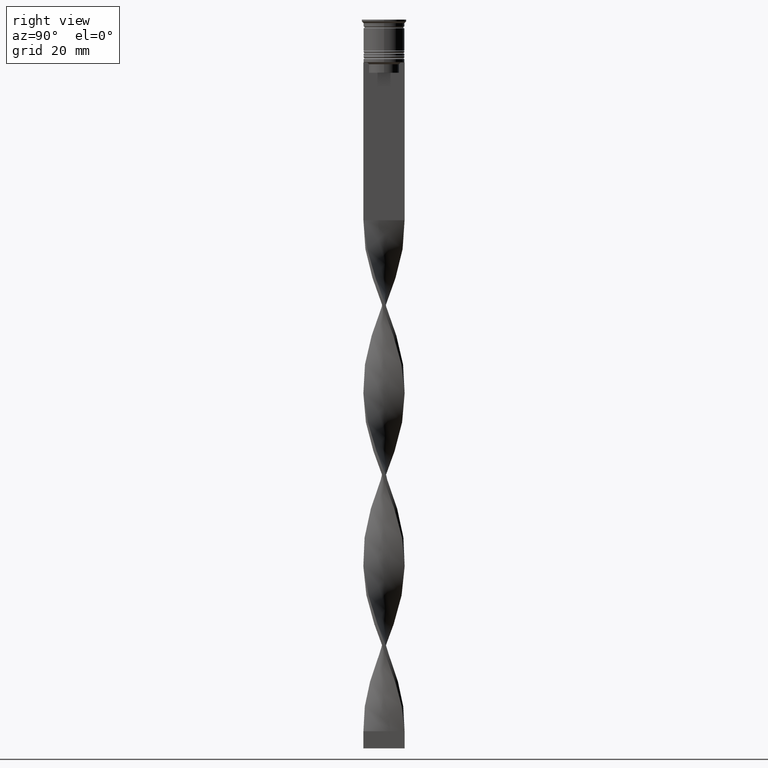
[diagram: clean part render]
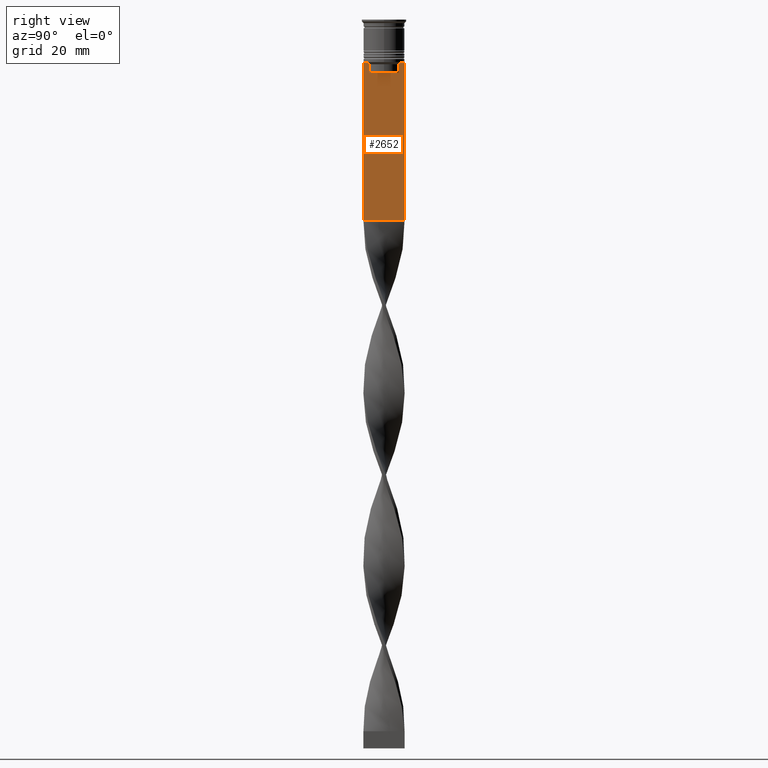
[diagram: same view with one face highlighted and labeled with its STEP entity id]
A machine part, right view. The second image highlights one B-rep face of the part: STEP entity #2652.
In plain terms, the highlighted planar face has unit normal (-1, 0, 0).
Its self-contained STEP definition (entity closure, byte-faithful):
#3 = LINE ( 'NONE', #2383, #3336 ) ;
#8 = B_SPLINE_CURVE_WITH_KNOTS ( 'NONE', 3,
 ( #1728, #3817, #2663, #242 ),
 .UNSPECIFIED., .F., .F.,
 ( 4, 4 ),
 ( 0.02089901220910808308, 0.02161421017310286019 ),
 .UNSPECIFIED. ) ;
#91 = VERTEX_POINT ( 'NONE', #867 ) ;
#148 = VERTEX_POINT ( 'NONE', #3849 ) ;
#173 = CARTESIAN_POINT ( 'NONE',  ( 0.5000000000000002220, 4.399999999999999467, -15.50000000000000000 ) ) ;
#206 = LINE ( 'NONE', #2154, #257 ) ;
#242 = CARTESIAN_POINT ( 'NONE',  ( 0.5000000000000002220, -4.874423042781576676, -12.50000000000000000 ) ) ;
#257 = VECTOR ( 'NONE', #2352, 1000.000000000000000 ) ;
#293 = DIRECTION ( 'NONE',  ( 0.000000000000000000, -1.000000000000000000, 0.000000000000000000 ) ) ;
#348 = VERTEX_POINT ( 'NONE', #1314 ) ;
#350 = EDGE_CURVE ( 'NONE', #348, #2137, #512, .T. ) ;
#366 = CARTESIAN_POINT ( 'NONE',  ( 0.5000000000000002220, -6.000000000000000000, -12.50000000000000000 ) ) ;
#396 = ORIENTED_EDGE ( 'NONE', *, *, #1695, .T. ) ;
#401 = CARTESIAN_POINT ( 'NONE',  ( 0.5000000000000002220, 4.371498598878878816, 0.000000000000000000 ) ) ;
#485 = DIRECTION ( 'NONE',  ( 0.000000000000000000, 0.000000000000000000, 1.000000000000000000 ) ) ;
#512 = LINE ( 'NONE', #173, #3157 ) ;
#598 = VERTEX_POINT ( 'NONE', #3150 ) ;
#647 = CARTESIAN_POINT ( 'NONE',  ( 0.5000000000000002220, -4.371498598878878816, -13.00000000000000178 ) ) ;
#667 = LINE ( 'NONE', #975, #881 ) ;
#673 = CARTESIAN_POINT ( 'NONE',  ( 0.5000000000000002220, -4.371498598878878816, -15.50000000000000000 ) ) ;
#744 = DIRECTION ( 'NONE',  ( -0.000000000000000000, -0.000000000000000000, 1.000000000000000000 ) ) ;
#801 = VECTOR ( 'NONE', #744, 1000.000000000000000 ) ;
#822 = FACE_OUTER_BOUND ( 'NONE', #962, .T. ) ;
#835 = VERTEX_POINT ( 'NONE', #1734 ) ;
#857 = B_SPLINE_CURVE_WITH_KNOTS ( 'NONE', 3,
 ( #1885, #3685, #1928, #2486 ),
 .UNSPECIFIED., .F., .F.,
 ( 4, 4 ),
 ( 0.008336552452178421987, 0.009045730124312839626 ),
 .UNSPECIFIED. ) ;
#867 = CARTESIAN_POINT ( 'NONE',  ( 0.5000000000000002220, -6.000000000000000000, -12.50000000000000000 ) ) ;
#881 = VECTOR ( 'NONE', #3380, 1000.000000000000000 ) ;
#921 = ORIENTED_EDGE ( 'NONE', *, *, #3396, .T. ) ;
#962 = EDGE_LOOP ( 'NONE', ( #2723, #1039, #2107, #2933, #3318, #3732, #1153, #921, #2643, #1700, #3351, #396 ) ) ;
#975 = CARTESIAN_POINT ( 'NONE',  ( 0.5000000000000002220, -6.000000000000000000, -58.50000000000000000 ) ) ;
#1039 = ORIENTED_EDGE ( 'NONE', *, *, #2207, .T. ) ;
#1147 = CARTESIAN_POINT ( 'NONE',  ( 0.5000000000000002220, -5.999999999999999112, -58.50000000000000000 ) ) ;
#1153 = ORIENTED_EDGE ( 'NONE', *, *, #2337, .T. ) ;
#1246 = EDGE_CURVE ( 'NONE', #3640, #348, #2839, .T. ) ;
#1256 = VERTEX_POINT ( 'NONE', #647 ) ;
#1259 = AXIS2_PLACEMENT_3D ( 'NONE', #3183, #1361, #485 ) ;
#1314 = CARTESIAN_POINT ( 'NONE',  ( 0.5000000000000002220, 4.371498598878878816, -15.50000000000000000 ) ) ;
#1346 = CARTESIAN_POINT ( 'NONE',  ( 0.5000000000000002220, -4.371498598878878816, 0.000000000000000000 ) ) ;
#1361 = DIRECTION ( 'NONE',  ( -1.000000000000000000, 0.000000000000000000, 0.000000000000000000 ) ) ;
#1386 = CARTESIAN_POINT ( 'NONE',  ( 0.5000000000000002220, 4.371498598878878816, -13.00000000000000178 ) ) ;
#1403 = EDGE_CURVE ( 'NONE', #148, #2570, #2259, .T. ) ;
#1455 = EDGE_CURVE ( 'NONE', #2137, #1256, #3770, .T. ) ;
#1502 = DIRECTION ( 'NONE',  ( 0.000000000000000000, -1.000000000000000000, 0.000000000000000000 ) ) ;
#1695 = EDGE_CURVE ( 'NONE', #598, #148, #2447, .T. ) ;
#1700 = ORIENTED_EDGE ( 'NONE', *, *, #3570, .T. ) ;
#1706 = DIRECTION ( 'NONE',  ( 0.000000000000000000, -1.000000000000000000, 0.000000000000000000 ) ) ;
#1714 = EDGE_CURVE ( 'NONE', #91, #3842, #3, .T. ) ;
#1728 = CARTESIAN_POINT ( 'NONE',  ( 0.5000000000000002220, -4.371498598878878816, -13.00000000000000178 ) ) ;
#1734 = CARTESIAN_POINT ( 'NONE',  ( 0.5000000000000002220, -5.878775382679627626, -12.50000000000000000 ) ) ;
#1789 = LINE ( 'NONE', #3007, #3406 ) ;
#1816 = VECTOR ( 'NONE', #3362, 1000.000000000000000 ) ;
#1885 = CARTESIAN_POINT ( 'NONE',  ( 0.5000000000000002220, 4.874423042781576676, -12.50000000000000000 ) ) ;
#1897 = CARTESIAN_POINT ( 'NONE',  ( 0.5000000000000002220, 6.000000000000000888, -58.50000000000000000 ) ) ;
#1928 = CARTESIAN_POINT ( 'NONE',  ( 0.5000000000000002220, 4.539195634199896467, -12.83338923751318816 ) ) ;
#1975 = PLANE ( 'NONE',  #1259 ) ;
#2107 = ORIENTED_EDGE ( 'NONE', *, *, #1246, .T. ) ;
#2114 = DIRECTION ( 'NONE',  ( 0.000000000000000000, -1.000000000000000000, 0.000000000000000000 ) ) ;
#2135 = LINE ( 'NONE', #2992, #3533 ) ;
#2137 = VERTEX_POINT ( 'NONE', #673 ) ;
#2154 = CARTESIAN_POINT ( 'NONE',  ( 0.5000000000000002220, 6.000000000000000888, -0.4584054212077061097 ) ) ;
#2207 = EDGE_CURVE ( 'NONE', #2570, #3640, #857, .T. ) ;
#2259 = LINE ( 'NONE', #3739, #3728 ) ;
#2291 = DIRECTION ( 'NONE',  ( 0.000000000000000000, -1.000000000000000000, 0.000000000000000000 ) ) ;
#2337 = EDGE_CURVE ( 'NONE', #3021, #835, #1789, .T. ) ;
#2352 = DIRECTION ( 'NONE',  ( 0.000000000000000000, 0.000000000000000000, -1.000000000000000000 ) ) ;
#2383 = CARTESIAN_POINT ( 'NONE',  ( 0.5000000000000002220, -6.000000000000000000, -0.4584054212077061097 ) ) ;
#2407 = VERTEX_POINT ( 'NONE', #1897 ) ;
#2447 = LINE ( 'NONE', #366, #3401 ) ;
#2486 = CARTESIAN_POINT ( 'NONE',  ( 0.5000000000000002220, 4.371498598878878816, -13.00000000000000178 ) ) ;
#2570 = VERTEX_POINT ( 'NONE', #3109 ) ;
#2643 = ORIENTED_EDGE ( 'NONE', *, *, #1714, .T. ) ;
#2652 = ADVANCED_FACE ( 'NONE', ( #822 ), #1975, .F. ) ;
#2663 = CARTESIAN_POINT ( 'NONE',  ( 0.5000000000000002220, -4.706831372970962768, -12.66671687695981774 ) ) ;
#2723 = ORIENTED_EDGE ( 'NONE', *, *, #1403, .T. ) ;
#2839 = LINE ( 'NONE', #401, #1816 ) ;
#2933 = ORIENTED_EDGE ( 'NONE', *, *, #350, .T. ) ;
#2992 = CARTESIAN_POINT ( 'NONE',  ( 0.5000000000000002220, -6.000000000000000000, -12.50000000000000000 ) ) ;
#3007 = CARTESIAN_POINT ( 'NONE',  ( 0.5000000000000002220, -6.000000000000000000, -12.50000000000000000 ) ) ;
#3021 = VERTEX_POINT ( 'NONE', #3116 ) ;
#3109 = CARTESIAN_POINT ( 'NONE',  ( 0.5000000000000002220, 4.874423042781576676, -12.50000000000000000 ) ) ;
#3116 = CARTESIAN_POINT ( 'NONE',  ( 0.5000000000000002220, -4.874423042781576676, -12.50000000000000000 ) ) ;
#3150 = CARTESIAN_POINT ( 'NONE',  ( 0.5000000000000002220, 6.000000000000000888, -12.50000000000000000 ) ) ;
#3157 = VECTOR ( 'NONE', #1706, 1000.000000000000000 ) ;
#3183 = CARTESIAN_POINT ( 'NONE',  ( 0.5000000000000002220, -6.000000000000000000, -0.4584054212077061097 ) ) ;
#3290 = DIRECTION ( 'NONE',  ( 0.000000000000000000, 0.000000000000000000, -1.000000000000000000 ) ) ;
#3318 = ORIENTED_EDGE ( 'NONE', *, *, #1455, .T. ) ;
#3336 = VECTOR ( 'NONE', #3290, 1000.000000000000000 ) ;
#3351 = ORIENTED_EDGE ( 'NONE', *, *, #3856, .F. ) ;
#3362 = DIRECTION ( 'NONE',  ( 0.000000000000000000, 0.000000000000000000, -1.000000000000000000 ) ) ;
#3380 = DIRECTION ( 'NONE',  ( 0.000000000000000000, 1.000000000000000000, 0.000000000000000000 ) ) ;
#3396 = EDGE_CURVE ( 'NONE', #835, #91, #2135, .T. ) ;
#3401 = VECTOR ( 'NONE', #1502, 1000.000000000000000 ) ;
#3406 = VECTOR ( 'NONE', #293, 1000.000000000000000 ) ;
#3533 = VECTOR ( 'NONE', #2114, 1000.000000000000000 ) ;
#3570 = EDGE_CURVE ( 'NONE', #3842, #2407, #667, .T. ) ;
#3634 = EDGE_CURVE ( 'NONE', #1256, #3021, #8, .T. ) ;
#3640 = VERTEX_POINT ( 'NONE', #1386 ) ;
#3685 = CARTESIAN_POINT ( 'NONE',  ( 0.5000000000000002220, 4.706831415367288329, -12.66671683478479160 ) ) ;
#3728 = VECTOR ( 'NONE', #2291, 1000.000000000000000 ) ;
#3732 = ORIENTED_EDGE ( 'NONE', *, *, #3634, .T. ) ;
#3739 = CARTESIAN_POINT ( 'NONE',  ( 0.5000000000000002220, -6.000000000000000000, -12.50000000000000000 ) ) ;
#3770 = LINE ( 'NONE', #1346, #801 ) ;
#3817 = CARTESIAN_POINT ( 'NONE',  ( 0.5000000000000002220, -4.539195586926423331, -12.83338928448044314 ) ) ;
#3842 = VERTEX_POINT ( 'NONE', #1147 ) ;
#3849 = CARTESIAN_POINT ( 'NONE',  ( 0.5000000000000002220, 5.878775382679627626, -12.50000000000000000 ) ) ;
#3856 = EDGE_CURVE ( 'NONE', #598, #2407, #206, .T. ) ;